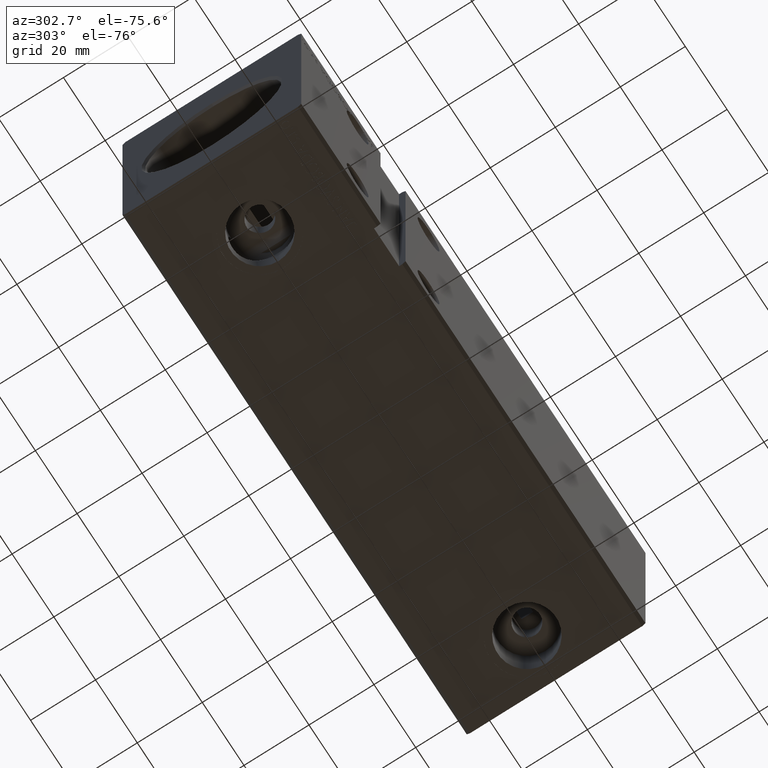
[diagram: clean part render]
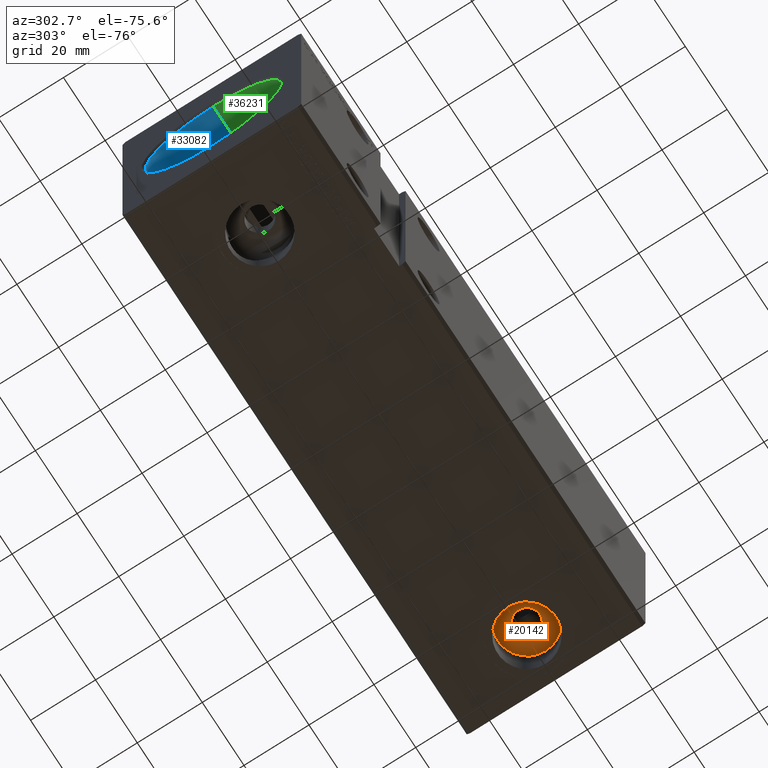
[diagram: same view with three faces highlighted in distinct colors, each labeled with its STEP entity id]
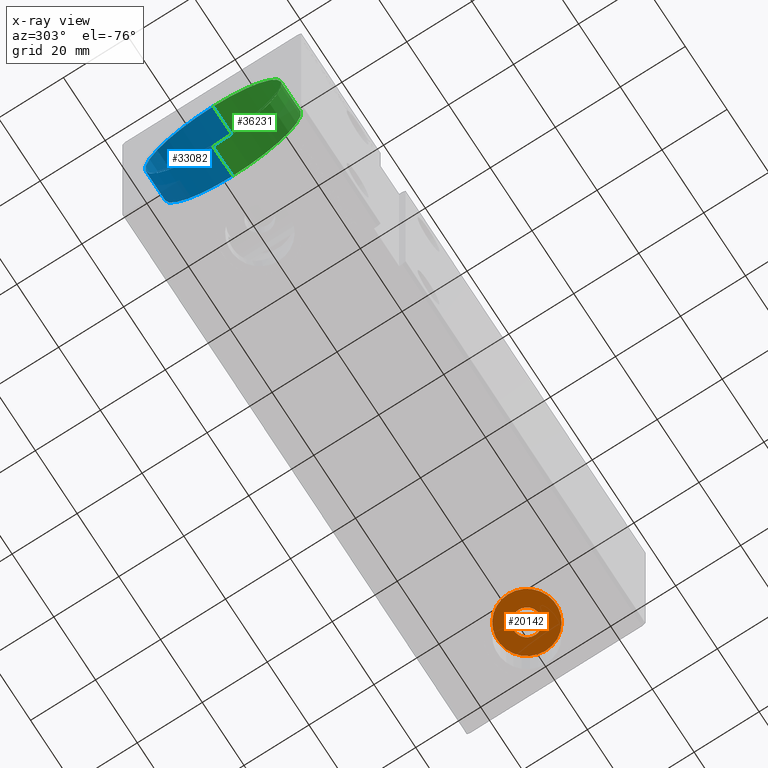
[diagram: x-ray of the same camera — body ghosted, the three highlighted faces saturated]
A machine part, auxiliary view with three faces highlighted in distinct colors.
The next image is the same camera in x-ray (body ghosted, the three faces saturated) — at least one of them is partly hidden behind the body in this view.
Their STEP definitions:

[orange] entity #20142 — the highlighted planar face has unit normal (0, 0, -1).
#968 = CARTESIAN_POINT ( 'NONE',  ( 150.9999999999999716, -1.771764358548707728E-14, -23.79999999999998650 ) ) ;
#2175 = DIRECTION ( 'NONE',  ( 0.000000000000000000, 0.000000000000000000, -1.000000000000000000 ) ) ;
#2659 = ORIENTED_EDGE ( 'NONE', *, *, #4441, .T. ) ;
#3798 = FACE_BOUND ( 'NONE', #31844, .T. ) ;
#4441 = EDGE_CURVE ( 'NONE', #16704, #9497, #28819, .T. ) ;
#6962 = CARTESIAN_POINT ( 'NONE',  ( 154.9999999999999716, -1.722778486582813669E-14, -23.79999999999998650 ) ) ;
#7556 = DIRECTION ( 'NONE',  ( -1.000000000000000000, 0.000000000000000000, 0.000000000000000000 ) ) ;
#8594 = EDGE_LOOP ( 'NONE', ( #16562, #2659 ) ) ;
#9497 = VERTEX_POINT ( 'NONE', #38860 ) ;
#9579 = CARTESIAN_POINT ( 'NONE',  ( 0.000000000000000000, 0.000000000000000000, -23.79999999999998650 ) ) ;
#10348 = AXIS2_PLACEMENT_3D ( 'NONE', #24364, #14809, #39357 ) ;
#12778 = EDGE_CURVE ( 'NONE', #16058, #38815, #28234, .T. ) ;
#12909 = DIRECTION ( 'NONE',  ( -1.000000000000000000, 0.000000000000000000, 0.000000000000000000 ) ) ;
#13759 = CIRCLE ( 'NONE', #36070, 4.000000000000003553 ) ;
#14493 = ORIENTED_EDGE ( 'NONE', *, *, #12778, .F. ) ;
#14809 = DIRECTION ( 'NONE',  ( 0.000000000000000000, 0.000000000000000000, -1.000000000000000000 ) ) ;
#15947 = PLANE ( 'NONE',  #35127 ) ;
#16058 = VERTEX_POINT ( 'NONE', #25059 ) ;
#16562 = ORIENTED_EDGE ( 'NONE', *, *, #16901, .T. ) ;
#16704 = VERTEX_POINT ( 'NONE', #29095 ) ;
#16901 = EDGE_CURVE ( 'NONE', #9497, #16704, #27039, .T. ) ;
#19350 = ORIENTED_EDGE ( 'NONE', *, *, #22273, .F. ) ;
#19482 = DIRECTION ( 'NONE',  ( 0.000000000000000000, 0.000000000000000000, -1.000000000000000000 ) ) ;
#20043 = AXIS2_PLACEMENT_3D ( 'NONE', #32246, #29052, #38246 ) ;
#20142 = ADVANCED_FACE ( 'NONE', ( #3798, #28312 ), #15947, .T. ) ;
#21730 = DIRECTION ( 'NONE',  ( -1.000000000000000000, 0.000000000000000000, -0.000000000000000000 ) ) ;
#21852 = AXIS2_PLACEMENT_3D ( 'NONE', #968, #19482, #12909 ) ;
#22273 = EDGE_CURVE ( 'NONE', #38815, #16058, #13759, .T. ) ;
#22319 = DIRECTION ( 'NONE',  ( 0.000000000000000000, 0.000000000000000000, -1.000000000000000000 ) ) ;
#24364 = CARTESIAN_POINT ( 'NONE',  ( 150.9999999999999716, -1.771764358548707728E-14, -23.79999999999998650 ) ) ;
#25059 = CARTESIAN_POINT ( 'NONE',  ( 146.9999999999999716, -1.771764358548707728E-14, -23.79999999999998650 ) ) ;
#27039 = CIRCLE ( 'NONE', #20043, 9.000000000000007105 ) ;
#28234 = CIRCLE ( 'NONE', #21852, 4.000000000000003553 ) ;
#28312 = FACE_OUTER_BOUND ( 'NONE', #8594, .T. ) ;
#28819 = CIRCLE ( 'NONE', #10348, 9.000000000000007105 ) ;
#29052 = DIRECTION ( 'NONE',  ( 0.000000000000000000, 0.000000000000000000, -1.000000000000000000 ) ) ;
#29095 = CARTESIAN_POINT ( 'NONE',  ( 159.9999999999999716, -1.661546146625445779E-14, -23.79999999999998650 ) ) ;
#29468 = CARTESIAN_POINT ( 'NONE',  ( 150.9999999999999716, -1.771764358548707728E-14, -23.79999999999998650 ) ) ;
#31844 = EDGE_LOOP ( 'NONE', ( #14493, #19350 ) ) ;
#32246 = CARTESIAN_POINT ( 'NONE',  ( 150.9999999999999716, -1.771764358548707728E-14, -23.79999999999998650 ) ) ;
#35127 = AXIS2_PLACEMENT_3D ( 'NONE', #9579, #22319, #21730 ) ;
#36070 = AXIS2_PLACEMENT_3D ( 'NONE', #29468, #2175, #7556 ) ;
#38246 = DIRECTION ( 'NONE',  ( -1.000000000000000000, 0.000000000000000000, 0.000000000000000000 ) ) ;
#38815 = VERTEX_POINT ( 'NONE', #6962 ) ;
#38860 = CARTESIAN_POINT ( 'NONE',  ( 141.9999999999999716, -1.771764358548707728E-14, -23.79999999999998650 ) ) ;
#39357 = DIRECTION ( 'NONE',  ( -1.000000000000000000, 0.000000000000000000, 0.000000000000000000 ) ) ;

[blue] entity #33082 — the highlighted cylindrical surface (partial cylindrical patch) has radius 21 mm, axis along (-1, -0, -0).
#713 = CARTESIAN_POINT ( 'NONE',  ( 10.00000000000000000, 0.000000000000000000, 0.000000000000000000 ) ) ;
#964 = VERTEX_POINT ( 'NONE', #14559 ) ;
#1869 = DIRECTION ( 'NONE',  ( 0.000000000000000000, 0.000000000000000000, 1.000000000000000000 ) ) ;
#2350 = CARTESIAN_POINT ( 'NONE',  ( 0.7000000000000443645, 0.000000000000000000, 0.000000000000000000 ) ) ;
#2564 = AXIS2_PLACEMENT_3D ( 'NONE', #713, #37598, #12860 ) ;
#3610 = CARTESIAN_POINT ( 'NONE',  ( 10.00000000000000000, 0.000000000000000000, 21.00000000000000000 ) ) ;
#4857 = CIRCLE ( 'NONE', #6860, 21.00000000000000000 ) ;
#5316 = VECTOR ( 'NONE', #15753, 1000.000000000000000 ) ;
#6860 = AXIS2_PLACEMENT_3D ( 'NONE', #38356, #29168, #1869 ) ;
#7113 = ORIENTED_EDGE ( 'NONE', *, *, #9843, .T. ) ;
#7269 = VERTEX_POINT ( 'NONE', #9767 ) ;
#9089 = CIRCLE ( 'NONE', #28178, 21.00000000000000000 ) ;
#9767 = CARTESIAN_POINT ( 'NONE',  ( 10.00000000000000000, 0.000000000000000000, 21.00000000000000000 ) ) ;
#9843 = EDGE_CURVE ( 'NONE', #37141, #964, #9089, .T. ) ;
#11364 = EDGE_CURVE ( 'NONE', #7269, #37141, #24337, .T. ) ;
#11503 = DIRECTION ( 'NONE',  ( -1.000000000000000000, 0.000000000000000000, 0.000000000000000000 ) ) ;
#12860 = DIRECTION ( 'NONE',  ( 0.000000000000000000, 0.000000000000000000, 1.000000000000000000 ) ) ;
#13300 = EDGE_LOOP ( 'NONE', ( #17797, #37837, #31476, #7113 ) ) ;
#14321 = EDGE_CURVE ( 'NONE', #15716, #964, #33859, .T. ) ;
#14559 = CARTESIAN_POINT ( 'NONE',  ( 0.7000000000000443645, 2.571758278209441661E-15, -21.00000000000000000 ) ) ;
#15716 = VERTEX_POINT ( 'NONE', #39115 ) ;
#15753 = DIRECTION ( 'NONE',  ( -1.000000000000000000, -0.000000000000000000, -0.000000000000000000 ) ) ;
#15901 = CARTESIAN_POINT ( 'NONE',  ( 0.7000000000000443645, 0.000000000000000000, 21.00000000000000000 ) ) ;
#16045 = FACE_OUTER_BOUND ( 'NONE', #13300, .T. ) ;
#17797 = ORIENTED_EDGE ( 'NONE', *, *, #14321, .F. ) ;
#18509 = CARTESIAN_POINT ( 'NONE',  ( 10.00000000000000000, 2.571758278209441661E-15, -21.00000000000000000 ) ) ;
#18703 = VECTOR ( 'NONE', #36867, 1000.000000000000000 ) ;
#19621 = CYLINDRICAL_SURFACE ( 'NONE', #2564, 21.00000000000000000 ) ;
#21794 = EDGE_CURVE ( 'NONE', #7269, #15716, #4857, .T. ) ;
#24337 = LINE ( 'NONE', #3610, #5316 ) ;
#28178 = AXIS2_PLACEMENT_3D ( 'NONE', #2350, #11503, #30222 ) ;
#29168 = DIRECTION ( 'NONE',  ( -1.000000000000000000, 0.000000000000000000, 0.000000000000000000 ) ) ;
#30222 = DIRECTION ( 'NONE',  ( 0.000000000000000000, 0.000000000000000000, -1.000000000000000000 ) ) ;
#31476 = ORIENTED_EDGE ( 'NONE', *, *, #11364, .T. ) ;
#33082 = ADVANCED_FACE ( 'NONE', ( #16045 ), #19621, .F. ) ;
#33859 = LINE ( 'NONE', #18509, #18703 ) ;
#36867 = DIRECTION ( 'NONE',  ( -1.000000000000000000, -0.000000000000000000, -0.000000000000000000 ) ) ;
#37141 = VERTEX_POINT ( 'NONE', #15901 ) ;
#37598 = DIRECTION ( 'NONE',  ( -1.000000000000000000, -0.000000000000000000, -0.000000000000000000 ) ) ;
#37837 = ORIENTED_EDGE ( 'NONE', *, *, #21794, .F. ) ;
#38356 = CARTESIAN_POINT ( 'NONE',  ( 10.00000000000000000, 0.000000000000000000, 0.000000000000000000 ) ) ;
#39115 = CARTESIAN_POINT ( 'NONE',  ( 10.00000000000000000, 2.571758278209441661E-15, -21.00000000000000000 ) ) ;

[green] entity #36231 — the highlighted cylindrical surface (partial cylindrical patch) has radius 21 mm, axis along (-1, -0, -0).
#964 = VERTEX_POINT ( 'NONE', #14559 ) ;
#1257 = CIRCLE ( 'NONE', #9513, 21.00000000000000000 ) ;
#3610 = CARTESIAN_POINT ( 'NONE',  ( 10.00000000000000000, 0.000000000000000000, 21.00000000000000000 ) ) ;
#4026 = ORIENTED_EDGE ( 'NONE', *, *, #12635, .T. ) ;
#4382 = DIRECTION ( 'NONE',  ( -1.000000000000000000, -0.000000000000000000, -0.000000000000000000 ) ) ;
#5316 = VECTOR ( 'NONE', #15753, 1000.000000000000000 ) ;
#5937 = DIRECTION ( 'NONE',  ( 0.000000000000000000, 0.000000000000000000, 1.000000000000000000 ) ) ;
#6781 = ORIENTED_EDGE ( 'NONE', *, *, #31983, .F. ) ;
#7269 = VERTEX_POINT ( 'NONE', #9767 ) ;
#9513 = AXIS2_PLACEMENT_3D ( 'NONE', #33831, #36647, #5937 ) ;
#9767 = CARTESIAN_POINT ( 'NONE',  ( 10.00000000000000000, 0.000000000000000000, 21.00000000000000000 ) ) ;
#10442 = CIRCLE ( 'NONE', #28872, 21.00000000000000000 ) ;
#11364 = EDGE_CURVE ( 'NONE', #7269, #37141, #24337, .T. ) ;
#12635 = EDGE_CURVE ( 'NONE', #964, #37141, #10442, .T. ) ;
#13343 = FACE_OUTER_BOUND ( 'NONE', #23817, .T. ) ;
#14321 = EDGE_CURVE ( 'NONE', #15716, #964, #33859, .T. ) ;
#14559 = CARTESIAN_POINT ( 'NONE',  ( 0.7000000000000443645, 2.571758278209441661E-15, -21.00000000000000000 ) ) ;
#15716 = VERTEX_POINT ( 'NONE', #39115 ) ;
#15753 = DIRECTION ( 'NONE',  ( -1.000000000000000000, -0.000000000000000000, -0.000000000000000000 ) ) ;
#15901 = CARTESIAN_POINT ( 'NONE',  ( 0.7000000000000443645, 0.000000000000000000, 21.00000000000000000 ) ) ;
#18106 = DIRECTION ( 'NONE',  ( -1.000000000000000000, 0.000000000000000000, 0.000000000000000000 ) ) ;
#18509 = CARTESIAN_POINT ( 'NONE',  ( 10.00000000000000000, 2.571758278209441661E-15, -21.00000000000000000 ) ) ;
#18703 = VECTOR ( 'NONE', #36867, 1000.000000000000000 ) ;
#22302 = CARTESIAN_POINT ( 'NONE',  ( 10.00000000000000000, 0.000000000000000000, 0.000000000000000000 ) ) ;
#23817 = EDGE_LOOP ( 'NONE', ( #6781, #39011, #4026, #35766 ) ) ;
#24337 = LINE ( 'NONE', #3610, #5316 ) ;
#27266 = CARTESIAN_POINT ( 'NONE',  ( 0.7000000000000443645, 0.000000000000000000, 0.000000000000000000 ) ) ;
#28872 = AXIS2_PLACEMENT_3D ( 'NONE', #27266, #18106, #36854 ) ;
#31491 = CYLINDRICAL_SURFACE ( 'NONE', #34430, 21.00000000000000000 ) ;
#31983 = EDGE_CURVE ( 'NONE', #15716, #7269, #1257, .T. ) ;
#33831 = CARTESIAN_POINT ( 'NONE',  ( 10.00000000000000000, 0.000000000000000000, 0.000000000000000000 ) ) ;
#33859 = LINE ( 'NONE', #18509, #18703 ) ;
#34430 = AXIS2_PLACEMENT_3D ( 'NONE', #22302, #4382, #38086 ) ;
#35766 = ORIENTED_EDGE ( 'NONE', *, *, #11364, .F. ) ;
#36231 = ADVANCED_FACE ( 'NONE', ( #13343 ), #31491, .F. ) ;
#36647 = DIRECTION ( 'NONE',  ( -1.000000000000000000, 0.000000000000000000, 0.000000000000000000 ) ) ;
#36854 = DIRECTION ( 'NONE',  ( 0.000000000000000000, 0.000000000000000000, -1.000000000000000000 ) ) ;
#36867 = DIRECTION ( 'NONE',  ( -1.000000000000000000, -0.000000000000000000, -0.000000000000000000 ) ) ;
#37141 = VERTEX_POINT ( 'NONE', #15901 ) ;
#38086 = DIRECTION ( 'NONE',  ( 0.000000000000000000, 0.000000000000000000, 1.000000000000000000 ) ) ;
#39011 = ORIENTED_EDGE ( 'NONE', *, *, #14321, .T. ) ;
#39115 = CARTESIAN_POINT ( 'NONE',  ( 10.00000000000000000, 2.571758278209441661E-15, -21.00000000000000000 ) ) ;